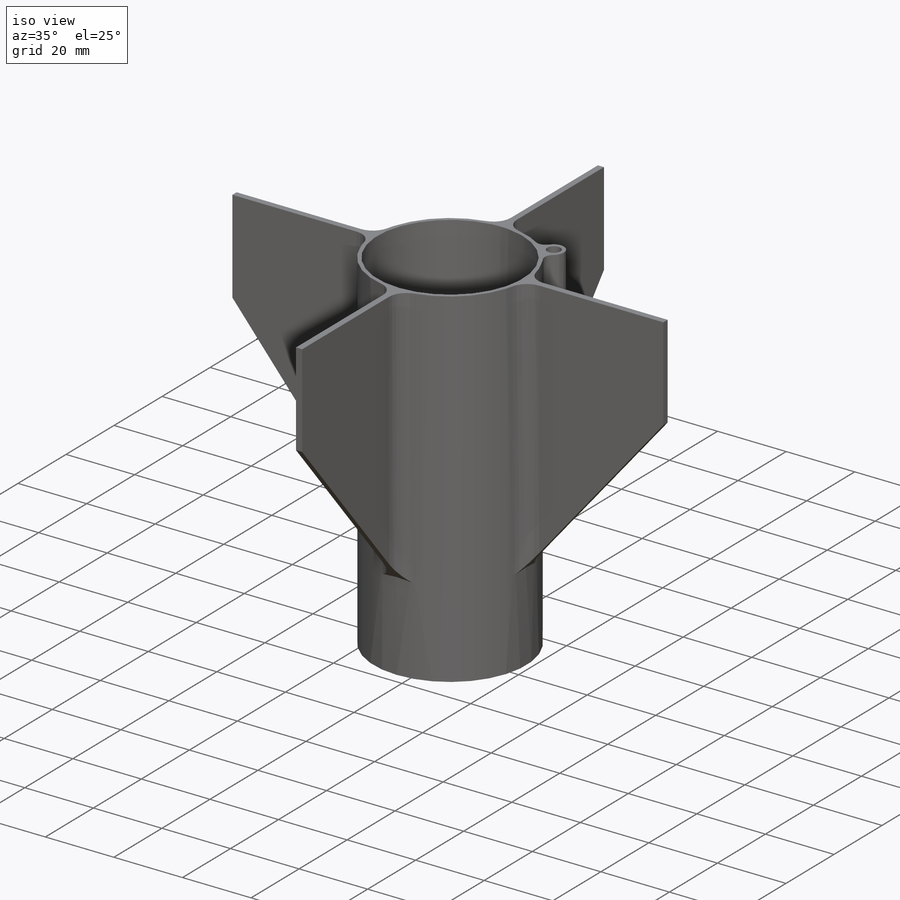
[diagram: iso view]
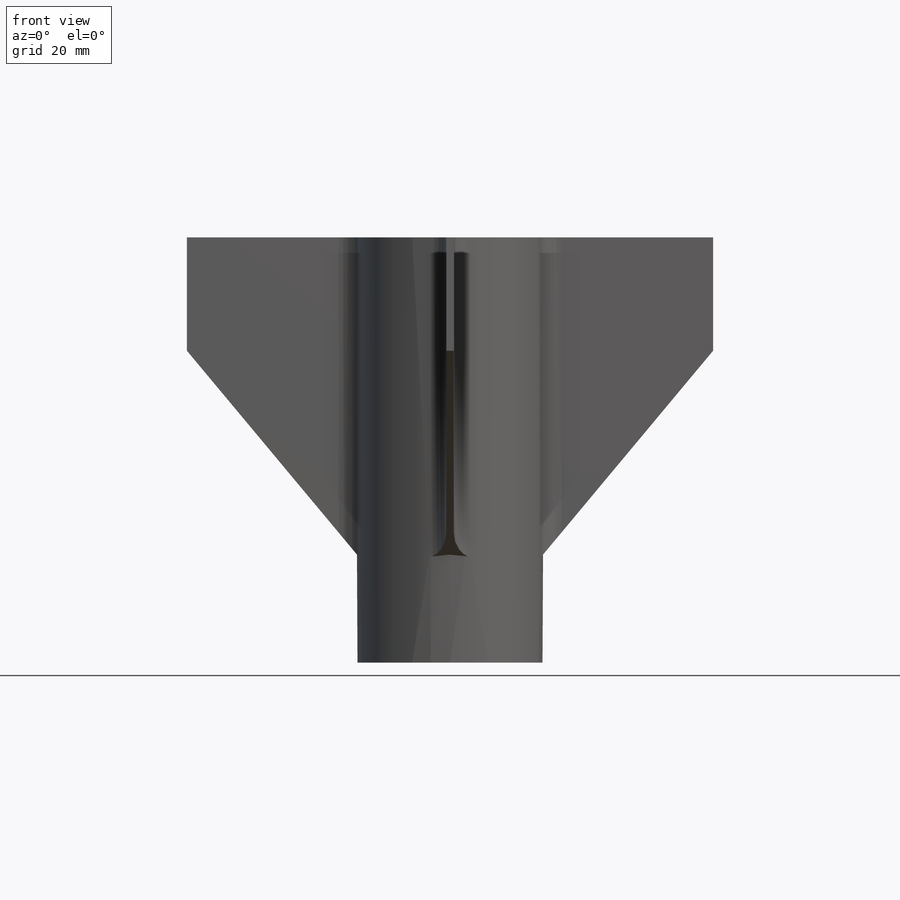
[diagram: front view]
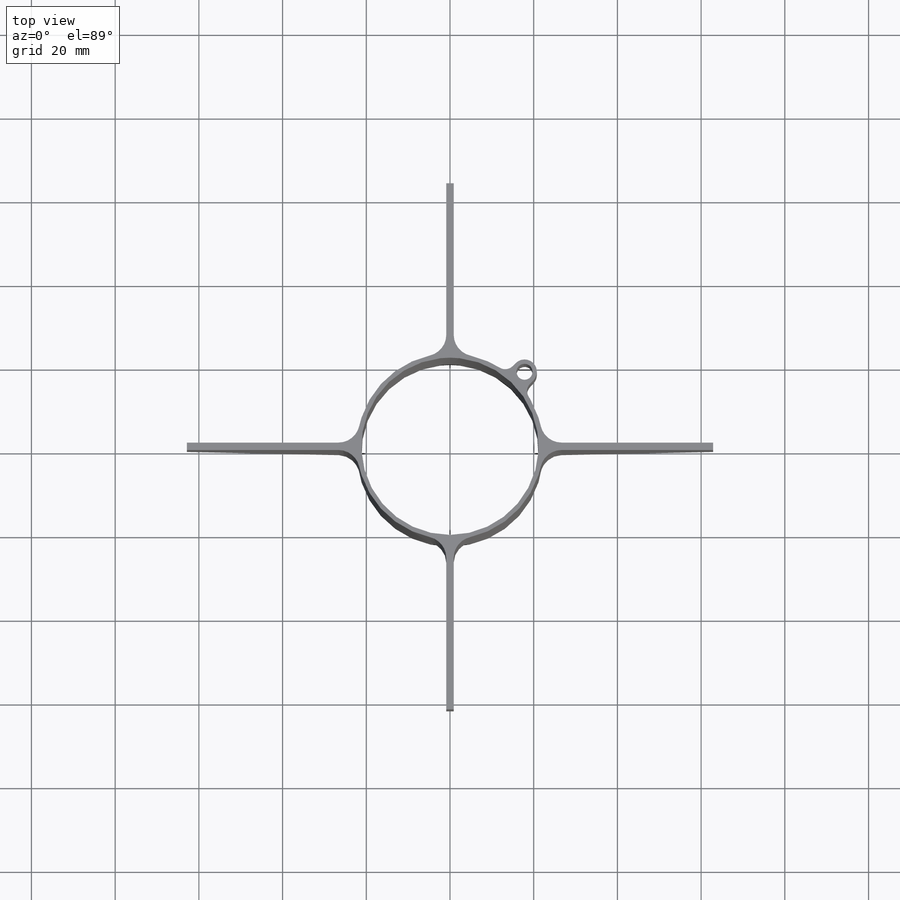
[diagram: top view]
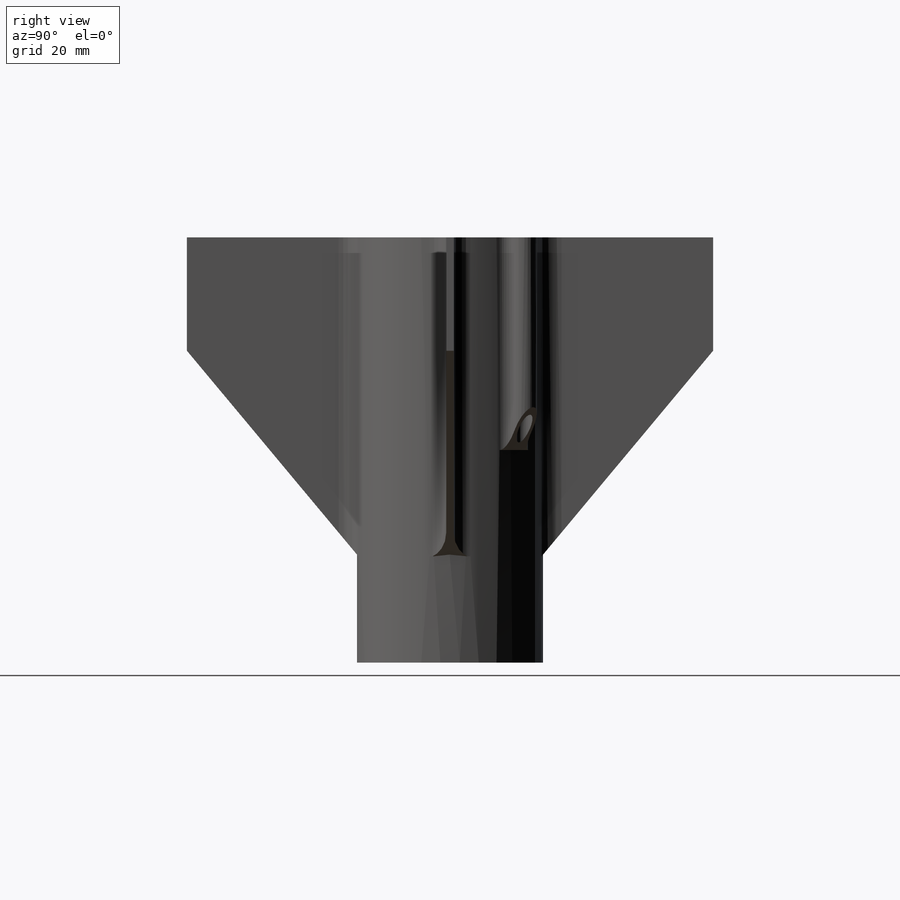
[diagram: right view]
SOLIDWORKS PART (.sldprt)
format: sldprt  version: not decoded by parser v0  size: 574,976 bytes
history: native  units: mm
features: sketch x14, extrude x8, cut_extrude x4, boolean_combine x2, plane x2, material x1, pattern_circular x1, fillet x1, cut_revolve x1, delete_body x1 (+16 scaffold rows collapsed)
feature tree (51):
  scaffold x16  (default folders/planes/origin — collapsed)
  material  "Material <not specified>"
  sketch  "Sketch1"  dims[c1.D1=24.0mm c1.D2=~28.350673mm c1.D3=1.0414mm c2.D1=18.1mm c2.D2=44.45mm c2.D3=~35.751565mm c2.D4=~26.421724mm c3.D2=1.05mm c3.D3=1.05mm c3.D4=1.0414mm c3.D8=~8.149622mm c3.D5=1.0414mm c3.D6=2.0828mm c4.D5=1.0414mm c4.D6=1.0414mm c4.D7=4.0]
  extrude  "Boss-Extrude1"  Depth=63.5mm
  sketch  "Sketch2"  dims[D1=23.8mm]
  extrude  "Boss-Extrude2"  Depth=69.85mm
  sketch  "Sketch5"  dims[D1=24.0mm D2=44.45mm]
  extrude  "Boss-Extrude3"  Depth=2.032mm
  sketch  "Sketch6"  dims[c1.D1=3.175mm c1.D2=~6.164724mm c2.D1=3.175mm c2.D2=1.524mm]
  extrude  "Boss-Extrude4"  Depth=19.05mm
  cut_extrude  "Cut-Extrude8"  [1 undecoded]
  sketch  "Sketch6<2>"  dims[D1=19.05mm]
  sketch  "Sketch8"  dims[D3=5.08mm D4=40.64mm D1=0.889mm D2=0.889mm]
  extrude  "Boss-Extrude5"  Depth=76.2mm
  sketch  "Sketch9"  dims[D1=~21.887064mm]
  cut_extrude  "Cut-Extrude9"  [1 undecoded]
  sketch  "Sketch10"  dims[D1=~19.879601mm]
  extrude  "Boss-Extrude6"  Depth=15.875mm
  sketch  "Sketch11"
  extrude  "Boss-Extrude7"  Depth=38.1mm
  pattern_circular  "CirPattern2"  Count=4 Angle=360deg
  boolean_combine  "Combine3"
  boolean_combine  "Combine4"
  sketch  "Sketch24"  dims[c1.D1=3.81mm c1.D3=3.81mm c1.D2=~26.28823mm c2.D2=45.0deg c2.D3=1.05mm]
  extrude  "Boss-Extrude13"  Depth=50.8mm
  fillet  "Fillet1"  Radius=2.54mm
  plane  "Plane1"
  sketch  "Sketch27"  dims[c1.D1=44.45mm c1.D2=6.35mm c2.D1=44.45mm c2.D3=~11.158293mm c3.D3=60.0deg]
  cut_revolve  "Cut-Revolve1"  Angle=29deg
  sketch  "Sketch28"  dims[D1=6.35mm]
  cut_extrude  "Cut-Extrude10"  [1 undecoded]
  delete_body  "Body-Delete1"
  plane  "Plane2"
  sketch  "Sketch29"  dims[c1.D1=~101.777113mm c2.D1=30.0deg]
  sketch  "Sketch30"
  cut_extrude  "Cut-Extrude11"  [1 undecoded]
decode coverage: 23 of 32 modeling features carry decoded parameters
note: ~ marks probable driven/reference dimensions
note: 4 parameter values undecoded
summary: no parameter record found for 4 features
note: suppression state not decoded; provenance and decode notes live in map.json
